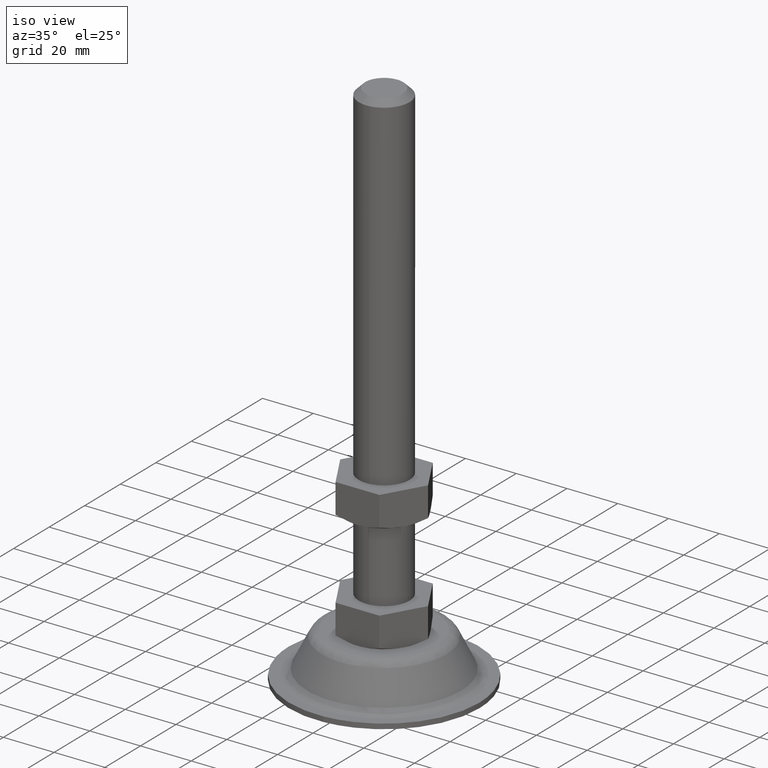
[diagram: clean part render]
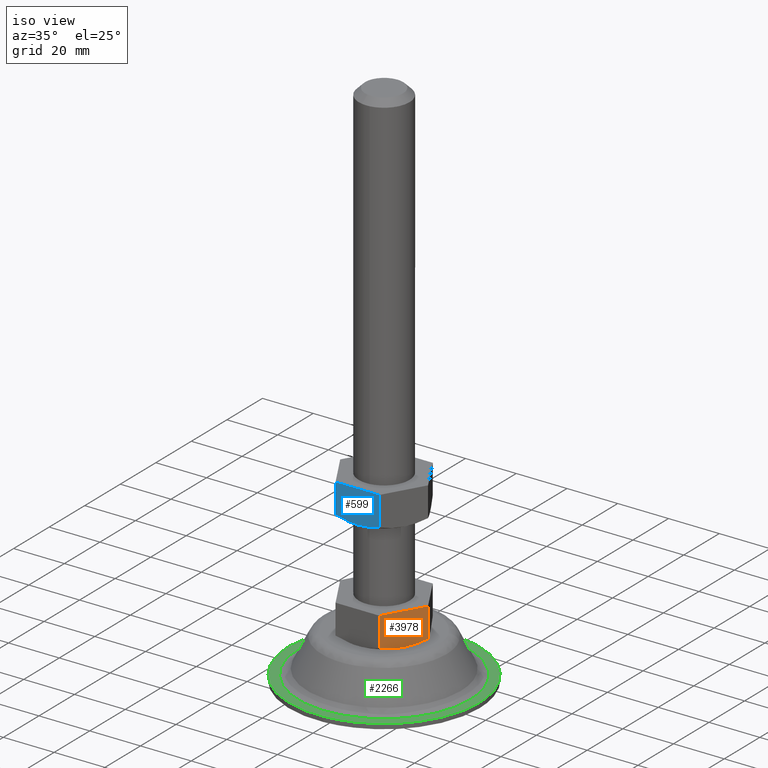
[diagram: same view with three faces highlighted in distinct colors, each labeled with its STEP entity id]
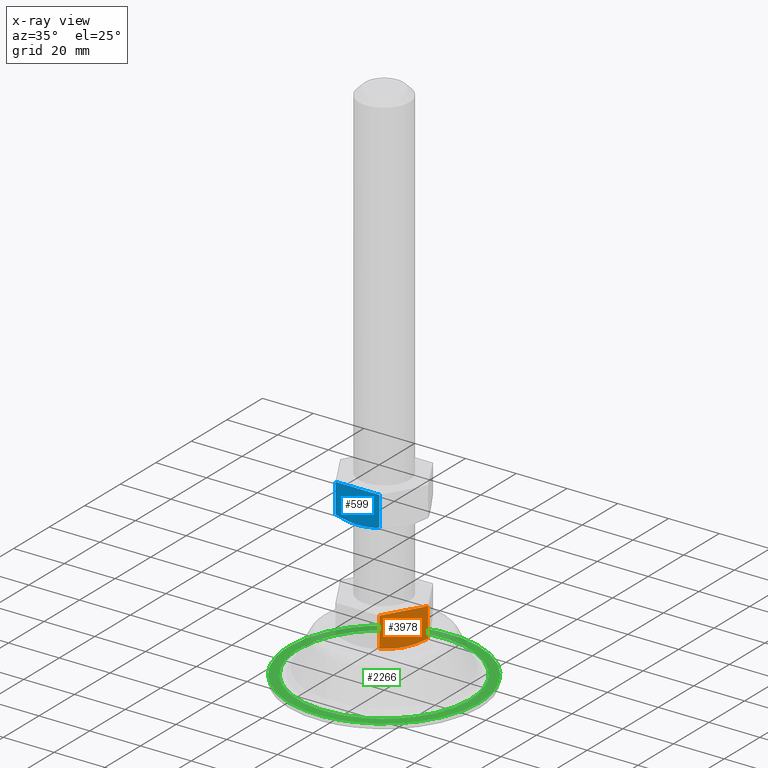
[diagram: x-ray of the same camera — body ghosted, the three highlighted faces saturated]
A machine part, iso view with three faces highlighted in distinct colors.
The next image is the same camera in x-ray (body ghosted, the three faces saturated) — at least one of them is partly hidden behind the body in this view.
Their STEP definitions:

[orange] entity #3978 — the highlighted face is a freeform B-spline surface patch.
#2546=CARTESIAN_POINT('',(12.901939603472551,-7.617664590606668,18.001998405069081));
#2547=VERTEX_POINT('',#2546);
#2553=CARTESIAN_POINT('',(8.639746000000001,-15.0,19.345671394023348));
#2554=VERTEX_POINT('',#2553);
#2555=CARTESIAN_POINT('',(8.639746000000001,-15.0,19.345671394023348));
#2556=CARTESIAN_POINT('',(9.346698966340201,-13.775521538386339,18.936786780817862));
#2557=CARTESIAN_POINT('',(10.058822484335890,-12.542087418563151,18.599588998314740));
#2558=CARTESIAN_POINT('',(11.138194585494009,-10.672560090915260,18.248891436496880));
#2559=CARTESIAN_POINT('',(11.499854347525391,-10.046147005286279,18.157905752206201));
#2560=CARTESIAN_POINT('',(12.207793307764140,-8.819960752136998,18.037942195592009));
#2561=CARTESIAN_POINT('',(12.553853744447270,-8.220566490693056,18.005931316077650));
#2562=CARTESIAN_POINT('',(12.901939603472551,-7.617664590606668,18.001998405069081));
#2563=B_SPLINE_CURVE_WITH_KNOTS('',3,(#2555,#2556,#2557,#2558,#2559,#2560,#2561,#2562),.UNSPECIFIED.,.F.,.U.,(4,2,2,4),(0.0,0.250000000000000,0.375000000000000,0.493260525463956),.UNSPECIFIED.);
#2564=EDGE_CURVE('',#2554,#2547,#2563,.T.);
#2717=CARTESIAN_POINT('',(17.300000000000001,-1.447629E-015,19.339745951230899));
#2718=VERTEX_POINT('',#2717);
#2740=CARTESIAN_POINT('',(12.901939603472551,-7.617664590606668,18.001998405069081));
#2741=CARTESIAN_POINT('',(12.921776223445599,-7.583306061036497,18.001774728731181));
#2742=CARTESIAN_POINT('',(12.941619634091980,-7.548936265451328,18.001641812504939));
#2743=CARTESIAN_POINT('',(13.053511370126760,-7.355134092845104,18.001408450569439));
#2744=CARTESIAN_POINT('',(13.145694399844590,-7.195468401080482,18.003175605669739));
#2745=CARTESIAN_POINT('',(13.330345165331950,-6.875643892202286,18.010657207356690));
#2746=CARTESIAN_POINT('',(13.422653180681939,-6.715761718971586,18.016368104078680));
#2747=CARTESIAN_POINT('',(13.698904168786321,-6.237280969842781,18.039291775102068));
#2748=CARTESIAN_POINT('',(13.882431816609079,-5.919401757831066,18.062310992847689));
#2749=CARTESIAN_POINT('',(14.431178601310799,-4.968944442084227,18.153576613393430));
#2750=CARTESIAN_POINT('',(14.794557260691610,-4.339554138900045,18.244083217684238));
#2751=CARTESIAN_POINT('',(15.878224604632850,-2.462587232488475,18.593839847269312));
#2752=CARTESIAN_POINT('',(16.592069824133251,-1.226171038170617,18.931022273626450));
#2753=CARTESIAN_POINT('',(17.300000000000001,-1.447629E-015,19.339745951230899));
#2754=B_SPLINE_CURVE_WITH_KNOTS('',3,(#2740,#2741,#2742,#2743,#2744,#2745,#2746,#2747,#2748,#2749,#2750,#2751,#2752,#2753),.UNSPECIFIED.,.F.,.U.,(4,2,2,2,2,2,4),(0.493260525463956,0.500000000000000,0.531250000000000,0.562500000000000,0.625000000000000,0.750000000000000,1.0),.UNSPECIFIED.);
#2755=EDGE_CURVE('',#2547,#2718,#2754,.T.);
#3879=CARTESIAN_POINT('',(8.639746000000001,-15.0,31.0));
#3880=VERTEX_POINT('',#3879);
#3886=CARTESIAN_POINT('',(17.300000000000001,0.0,31.0));
#3887=VERTEX_POINT('',#3886);
#3888=CARTESIAN_POINT('',(17.300000000000001,0.0,31.0));
#3889=CARTESIAN_POINT('',(8.639746000000001,-15.0,31.0));
#3890=QUASI_UNIFORM_CURVE('',1,(#3888,#3889),.UNSPECIFIED.,.F.,.U.);
#3891=EDGE_CURVE('',#3887,#3880,#3890,.T.);
#3953=CARTESIAN_POINT('',(8.639746000000001,-15.0,31.0));
#3954=CARTESIAN_POINT('',(8.639746000000001,-15.0,19.345671394023348));
#3955=QUASI_UNIFORM_CURVE('',1,(#3953,#3954),.UNSPECIFIED.,.F.,.U.);
#3956=EDGE_CURVE('',#3880,#2554,#3955,.T.);
#3962=CARTESIAN_POINT('',(8.207166279129453,-15.749250058145799,17.352748725279351));
#3963=CARTESIAN_POINT('',(17.732579256298280,0.749249253483117,17.352748725279351));
#3964=CARTESIAN_POINT('',(8.207166279129453,-15.749250058145799,31.649250480535471));
#3965=CARTESIAN_POINT('',(17.732579256298280,0.749249253483117,31.649250480535471));
#3966=B_SPLINE_SURFACE_WITH_KNOTS('',1,1,((#3962,#3964),(#3963,#3965)),.UNSPECIFIED.,.F.,.F.,.U.,(2,2),(2,2),(0.0,19.050826016775130),(0.0,14.296501755256120),.UNSPECIFIED.);
#3967=ORIENTED_EDGE('',*,*,#3956,.T.);
#3968=ORIENTED_EDGE('',*,*,#2564,.T.);
#3969=ORIENTED_EDGE('',*,*,#2755,.T.);
#3970=CARTESIAN_POINT('',(17.300000000000001,0.0,31.0));
#3971=CARTESIAN_POINT('',(17.300000000000001,-1.447629E-015,19.339745951230899));
#3972=QUASI_UNIFORM_CURVE('',1,(#3970,#3971),.UNSPECIFIED.,.F.,.U.);
#3973=EDGE_CURVE('',#3887,#2718,#3972,.T.);
#3974=ORIENTED_EDGE('',*,*,#3973,.F.);
#3975=ORIENTED_EDGE('',*,*,#3891,.T.);
#3976=EDGE_LOOP('',(#3967,#3968,#3969,#3974,#3975));
#3977=FACE_OUTER_BOUND('',#3976,.T.);
#3978=ADVANCED_FACE('',(#3977),#3966,.T.);

[blue] entity #599 — the highlighted face is a freeform B-spline surface patch.
#226=CARTESIAN_POINT('',(8.639746000000001,-15.0,62.345671394023498));
#227=VERTEX_POINT('',#226);
#243=CARTESIAN_POINT('',(-8.639746000000001,-15.0,62.345671394023498));
#244=VERTEX_POINT('',#243);
#245=CARTESIAN_POINT('',(-8.639746000000040,-15.0,62.345671394023391));
#246=CARTESIAN_POINT('',(-7.936833729160880,-15.0,62.143118803509253));
#247=CARTESIAN_POINT('',(-7.227461233591718,-15.0,61.957191362850843));
#248=CARTESIAN_POINT('',(-5.792395982895466,-15.0,61.627336067024530));
#249=CARTESIAN_POINT('',(-5.072865540092748,-15.0,61.484931105763863));
#250=CARTESIAN_POINT('',(-3.630093047437006,-15.0,61.252851617846993));
#251=CARTESIAN_POINT('',(-2.906706002747127,-15.0,61.163194633454047));
#252=CARTESIAN_POINT('',(-1.455476411894551,-15.0,61.042631424531443));
#253=CARTESIAN_POINT('',(-0.727630583971161,-15.0,61.011768473679403));
#254=CARTESIAN_POINT('',(0.732753118449164,-15.0,61.011912443008029));
#255=CARTESIAN_POINT('',(1.465291907568249,-15.0,61.042931423502608));
#256=CARTESIAN_POINT('',(2.383861673901577,-15.0,61.119895832698177));
#257=CARTESIAN_POINT('',(2.567617441095455,-15.0,61.137185060879297));
#258=CARTESIAN_POINT('',(2.933746094967379,-15.0,61.175312715864870));
#259=CARTESIAN_POINT('',(3.481481264012233,-15.0,61.237876046936201));
#260=CARTESIAN_POINT('',(4.025000240808047,-15.0,61.315975503435439));
#261=CARTESIAN_POINT('',(5.828098707583255,-15.0,61.608112828349640));
#262=CARTESIAN_POINT('',(7.243065403558322,-15.0,61.943201150343647));
#263=CARTESIAN_POINT('',(8.639746000000027,-15.0,62.345671394023377));
#264=B_SPLINE_CURVE_WITH_KNOTS('',3,(#245,#246,#247,#248,#249,#250,#251,#252,#253,#254,#255,#256,#257,#258,#259,#260,#261,#262,#263),.UNSPECIFIED.,.F.,.U.,(4,2,2,2,2,2,2,1,2,4),(0.0,0.125000000000000,0.250000000000000,0.375000000000000,0.500000000000000,0.625000000000000,0.656250000000000,0.687500000000000,0.750000000000000,1.0),.UNSPECIFIED.);
#265=EDGE_CURVE('',#244,#227,#264,.T.);
#511=CARTESIAN_POINT('',(-8.639746000000001,-15.0,74.0));
#512=VERTEX_POINT('',#511);
#520=CARTESIAN_POINT('',(8.639746000000001,-15.0,74.0));
#521=VERTEX_POINT('',#520);
#522=CARTESIAN_POINT('',(8.639746000000001,-15.0,74.0));
#523=CARTESIAN_POINT('',(-8.639746000000001,-15.0,74.0));
#524=QUASI_UNIFORM_CURVE('',1,(#522,#523),.UNSPECIFIED.,.F.,.U.);
#525=EDGE_CURVE('',#521,#512,#524,.T.);
#580=CARTESIAN_POINT('',(-9.502856205759496,-15.0,74.648758503804615));
#581=CARTESIAN_POINT('',(-9.502856205759496,-15.0,60.363082409523983));
#582=CARTESIAN_POINT('',(9.502855742287405,-15.0,74.648758503804615));
#583=CARTESIAN_POINT('',(9.502855742287405,-15.0,60.363082409523983));
#584=B_SPLINE_SURFACE_WITH_KNOTS('',1,1,((#580,#582),(#581,#583)),.UNSPECIFIED.,.F.,.F.,.U.,(2,2),(2,2),(0.0,14.285676094280641),(0.0,19.005711948046901),.UNSPECIFIED.);
#585=CARTESIAN_POINT('',(-8.639746000000001,-15.0,74.0));
#586=CARTESIAN_POINT('',(-8.639746000000001,-15.0,62.345671394023498));
#587=QUASI_UNIFORM_CURVE('',1,(#585,#586),.UNSPECIFIED.,.F.,.U.);
#588=EDGE_CURVE('',#512,#244,#587,.T.);
#589=ORIENTED_EDGE('',*,*,#588,.T.);
#590=ORIENTED_EDGE('',*,*,#265,.T.);
#591=CARTESIAN_POINT('',(8.639746000000001,-15.0,74.0));
#592=CARTESIAN_POINT('',(8.639746000000001,-15.0,62.345671394023498));
#593=QUASI_UNIFORM_CURVE('',1,(#591,#592),.UNSPECIFIED.,.F.,.U.);
#594=EDGE_CURVE('',#521,#227,#593,.T.);
#595=ORIENTED_EDGE('',*,*,#594,.F.);
#596=ORIENTED_EDGE('',*,*,#525,.T.);
#597=EDGE_LOOP('',(#589,#590,#595,#596));
#598=FACE_OUTER_BOUND('',#597,.T.);
#599=ADVANCED_FACE('',(#598),#584,.T.);

[green] entity #2266 — the highlighted face is a freeform B-spline surface patch.
#1192=CARTESIAN_POINT('',(-4.426273210541065,37.237858497307982,2.000000000000200));
#1193=VERTEX_POINT('',#1192);
#1199=CARTESIAN_POINT('',(37.500000000000000,0.0,2.000000000000200));
#1200=VERTEX_POINT('',#1199);
#1201=CARTESIAN_POINT('',(-4.426273210541065,37.237858497307990,2.000000000000200));
#1202=CARTESIAN_POINT('',(-2.220899136429925,37.500000000000000,2.000000000000200));
#1203=CARTESIAN_POINT('',(0.0,37.500000000000000,2.000000000000200));
#1204=CARTESIAN_POINT('',(37.500000000000000,37.500000000000000,2.000000000000199));
#1205=CARTESIAN_POINT('',(37.500000000000000,0.0,2.000000000000200));
#1213=(BOUNDED_CURVE()B_SPLINE_CURVE(2,(#1201,#1202,#1203,#1204,#1205),.UNSPECIFIED.,.F.,.U.)B_SPLINE_CURVE_WITH_KNOTS((3,2,3),(0.229562521574001,0.250000000000000,0.500000000000000),.UNSPECIFIED.)CURVE()GEOMETRIC_REPRESENTATION_ITEM()RATIONAL_B_SPLINE_CURVE((0.956026848384252,0.976056004637514,1.0,0.707106781186547,1.0))REPRESENTATION_ITEM(''));
#1214=EDGE_CURVE('',#1193,#1200,#1213,.T.);
#1216=CARTESIAN_POINT('',(2.289268383772411,-37.430058111955439,2.000000000000200));
#1217=VERTEX_POINT('',#1216);
#1218=CARTESIAN_POINT('',(37.500000000000000,0.0,2.000000000000200));
#1219=CARTESIAN_POINT('',(37.500000000000000,-35.276526465916405,2.000000000000201));
#1220=CARTESIAN_POINT('',(2.289268383772411,-37.430058111955447,2.000000000000200));
#1228=(BOUNDED_CURVE()B_SPLINE_CURVE(2,(#1218,#1219,#1220),.UNSPECIFIED.,.F.,.U.)B_SPLINE_CURVE_WITH_KNOTS((3,3),(0.500000000000000,0.739333201256925),.UNSPECIFIED.)CURVE()GEOMETRIC_REPRESENTATION_ITEM()RATIONAL_B_SPLINE_CURVE((1.0,0.719603713259726,0.976072553928287))REPRESENTATION_ITEM(''));
#1229=EDGE_CURVE('',#1200,#1217,#1228,.T.);
#1303=CARTESIAN_POINT('',(-37.500000000000000,0.0,2.000000000000200));
#1304=VERTEX_POINT('',#1303);
#1305=CARTESIAN_POINT('',(2.289268383772411,-37.430058111955447,2.000000000000200));
#1306=CARTESIAN_POINT('',(1.145702626617998,-37.500000000000000,2.000000000000200));
#1307=CARTESIAN_POINT('',(0.0,-37.500000000000000,2.000000000000200));
#1308=CARTESIAN_POINT('',(-37.500000000000000,-37.500000000000000,2.000000000000199));
#1309=CARTESIAN_POINT('',(-37.500000000000000,0.0,2.000000000000200));
#1317=(BOUNDED_CURVE()B_SPLINE_CURVE(2,(#1305,#1306,#1307,#1308,#1309),.UNSPECIFIED.,.F.,.U.)B_SPLINE_CURVE_WITH_KNOTS((3,2,3),(0.739333201256925,0.750000000000000,1.0),.UNSPECIFIED.)CURVE()GEOMETRIC_REPRESENTATION_ITEM()RATIONAL_B_SPLINE_CURVE((0.976072553928287,0.987503067926822,1.0,0.707106781186547,1.0))REPRESENTATION_ITEM(''));
#1318=EDGE_CURVE('',#1217,#1304,#1317,.T.);
#1320=CARTESIAN_POINT('',(-37.500000000000000,0.0,2.000000000000200));
#1321=CARTESIAN_POINT('',(-37.499999999999993,33.306554261016771,2.000000000000200));
#1322=CARTESIAN_POINT('',(-4.426273210541065,37.237858497307990,2.000000000000200));
#1330=(BOUNDED_CURVE()B_SPLINE_CURVE(2,(#1320,#1321,#1322),.UNSPECIFIED.,.F.,.U.)B_SPLINE_CURVE_WITH_KNOTS((3,3),(0.0,0.229562521574001),.UNSPECIFIED.)CURVE()GEOMETRIC_REPRESENTATION_ITEM()RATIONAL_B_SPLINE_CURVE((1.0,0.731050776549033,0.956026848384252))REPRESENTATION_ITEM(''));
#1331=EDGE_CURVE('',#1304,#1193,#1330,.T.);
#1918=CARTESIAN_POINT('',(13.782930928103120,-30.839101996789449,2.000000000003668));
#1919=VERTEX_POINT('',#1918);
#1920=CARTESIAN_POINT('',(-33.778974900876548,0.0,2.000000000000200));
#1921=VERTEX_POINT('',#1920);
#1922=CARTESIAN_POINT('',(13.782930928103116,-30.839101996789456,2.000000000003668));
#1923=CARTESIAN_POINT('',(7.205001522784190,-33.778978065627065,2.000000000003428));
#1924=CARTESIAN_POINT('',(0.000001252369840,-33.778977703035352,2.000000000003058));
#1925=CARTESIAN_POINT('',(-33.778974408255849,-33.778976003107999,2.000000000001325));
#1926=CARTESIAN_POINT('',(-33.778974900876548,0.0,2.000000000000200));
#1934=(BOUNDED_CURVE()B_SPLINE_CURVE(2,(#1922,#1923,#1924,#1925,#1926),.UNSPECIFIED.,.F.,.U.)B_SPLINE_CURVE_WITH_KNOTS((3,2,3),(0.680709527694445,0.750000000000000,1.0),.UNSPECIFIED.)CURVE()GEOMETRIC_REPRESENTATION_ITEM()RATIONAL_B_SPLINE_CURVE((0.882641684402579,0.918821162133287,1.0,0.707106781186548,1.0))REPRESENTATION_ITEM(''));
#1935=EDGE_CURVE('',#1919,#1921,#1934,.T.);
#1954=CARTESIAN_POINT('',(30.000338810761392,15.524136575906599,2.000000000000201));
#1955=VERTEX_POINT('',#1954);
#1969=CARTESIAN_POINT('',(-33.778974900876548,0.0,2.000000000000200));
#1970=CARTESIAN_POINT('',(-33.778974900876555,33.778974900876555,2.000000000000199));
#1971=CARTESIAN_POINT('',(0.0,33.778974900876548,2.000000000000200));
#1972=CARTESIAN_POINT('',(20.554092052148665,33.778974900876548,2.000000000000200));
#1973=CARTESIAN_POINT('',(30.000338810761388,15.524136575906601,2.000000000000201));
#1981=(BOUNDED_CURVE()B_SPLINE_CURVE(2,(#1969,#1970,#1971,#1972,#1973),.UNSPECIFIED.,.F.,.U.)B_SPLINE_CURVE_WITH_KNOTS((3,2,3),(0.0,0.250000000000000,0.421825371001586),.UNSPECIFIED.)CURVE()GEOMETRIC_REPRESENTATION_ITEM()RATIONAL_B_SPLINE_CURVE((1.0,0.707106781186548,1.0,0.798694056054119,0.874103860134842))REPRESENTATION_ITEM(''));
#1982=EDGE_CURVE('',#1921,#1955,#1981,.T.);
#2010=CARTESIAN_POINT('',(33.778974900876548,0.0,2.000000000000200));
#2011=VERTEX_POINT('',#2010);
#2012=CARTESIAN_POINT('',(33.778974900876548,0.0,2.000000000000200));
#2013=CARTESIAN_POINT('',(33.778975660625690,-21.902260505486836,2.000000000001935));
#2014=CARTESIAN_POINT('',(13.782930928103116,-30.839101996789456,2.000000000003668));
#2022=(BOUNDED_CURVE()B_SPLINE_CURVE(2,(#2012,#2013,#2014),.UNSPECIFIED.,.F.,.U.)B_SPLINE_CURVE_WITH_KNOTS((3,3),(0.500000000000000,0.680709527694445),.UNSPECIFIED.)CURVE()GEOMETRIC_REPRESENTATION_ITEM()RATIONAL_B_SPLINE_CURVE((1.0,0.788285619053261,0.882641684402579))REPRESENTATION_ITEM(''));
#2023=EDGE_CURVE('',#2011,#1919,#2022,.T.);
#2025=CARTESIAN_POINT('',(30.000338810761388,15.524136575906601,2.000000000000201));
#2026=CARTESIAN_POINT('',(33.778974900876541,8.221935754159370,2.000000000000200));
#2027=CARTESIAN_POINT('',(33.778974900876548,0.0,2.000000000000200));
#2035=(BOUNDED_CURVE()B_SPLINE_CURVE(2,(#2025,#2026,#2027),.UNSPECIFIED.,.F.,.U.)B_SPLINE_CURVE_WITH_KNOTS((3,3),(0.421825371001586,0.500000000000000),.UNSPECIFIED.)CURVE()GEOMETRIC_REPRESENTATION_ITEM()RATIONAL_B_SPLINE_CURVE((0.874103860134842,0.908412725132428,1.0))REPRESENTATION_ITEM(''));
#2036=EDGE_CURVE('',#1955,#2011,#2035,.T.);
#2249=CARTESIAN_POINT('',(-41.246249854635451,-41.245338546059941,2.000000000000200));
#2250=CARTESIAN_POINT('',(41.246251866292212,-41.245338546059941,2.000000000000200));
#2251=CARTESIAN_POINT('',(-41.246249854635451,41.245567874930707,2.000000000000200));
#2252=CARTESIAN_POINT('',(41.246251866292212,41.245567874930707,2.000000000000200));
#2253=B_SPLINE_SURFACE_WITH_KNOTS('',1,1,((#2249,#2251),(#2250,#2252)),.UNSPECIFIED.,.F.,.F.,.U.,(2,2),(2,2),(0.0,82.492501720927663),(0.0,82.490906420990655),.UNSPECIFIED.);
#2254=ORIENTED_EDGE('',*,*,#1318,.F.);
#2255=ORIENTED_EDGE('',*,*,#1229,.F.);
#2256=ORIENTED_EDGE('',*,*,#1214,.F.);
#2257=ORIENTED_EDGE('',*,*,#1331,.F.);
#2258=EDGE_LOOP('',(#2254,#2255,#2256,#2257));
#2259=FACE_OUTER_BOUND('',#2258,.T.);
#2260=ORIENTED_EDGE('',*,*,#1982,.T.);
#2261=ORIENTED_EDGE('',*,*,#2036,.T.);
#2262=ORIENTED_EDGE('',*,*,#2023,.T.);
#2263=ORIENTED_EDGE('',*,*,#1935,.T.);
#2264=EDGE_LOOP('',(#2260,#2261,#2262,#2263));
#2265=FACE_BOUND('',#2264,.T.);
#2266=ADVANCED_FACE('',(#2259,#2265),#2253,.T.);